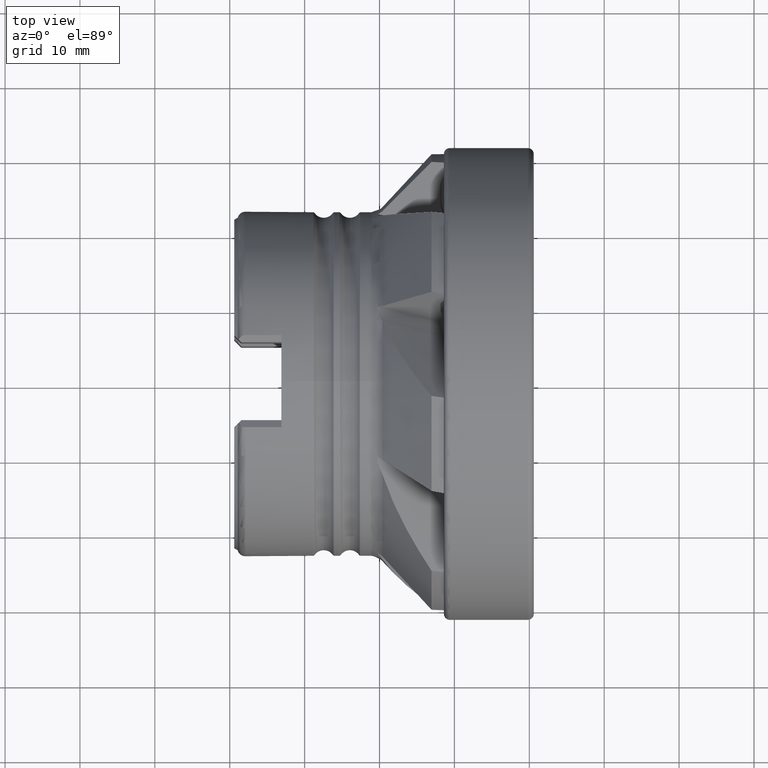
[diagram: clean part render]
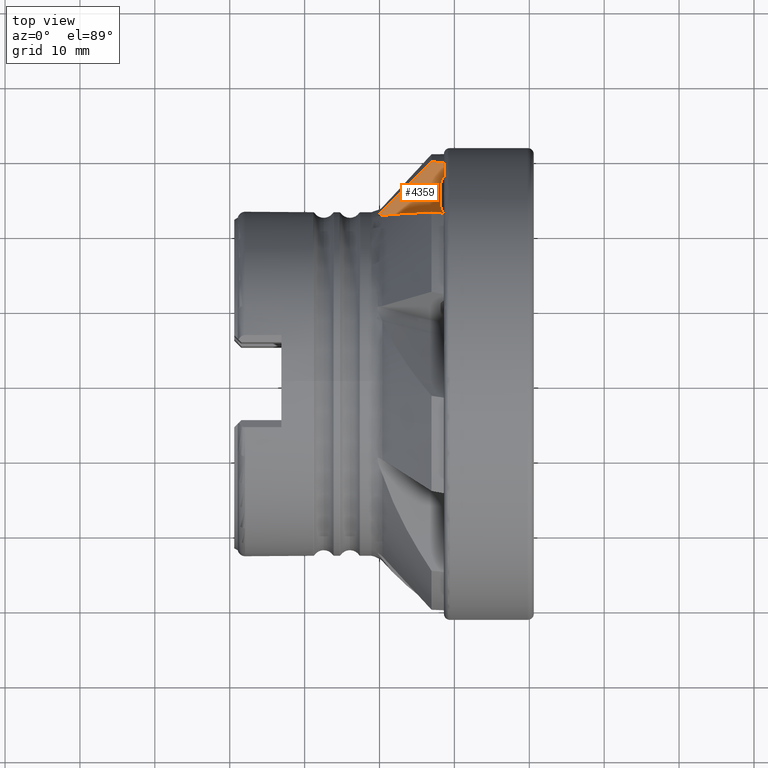
[diagram: same view with one face highlighted and labeled with its STEP entity id]
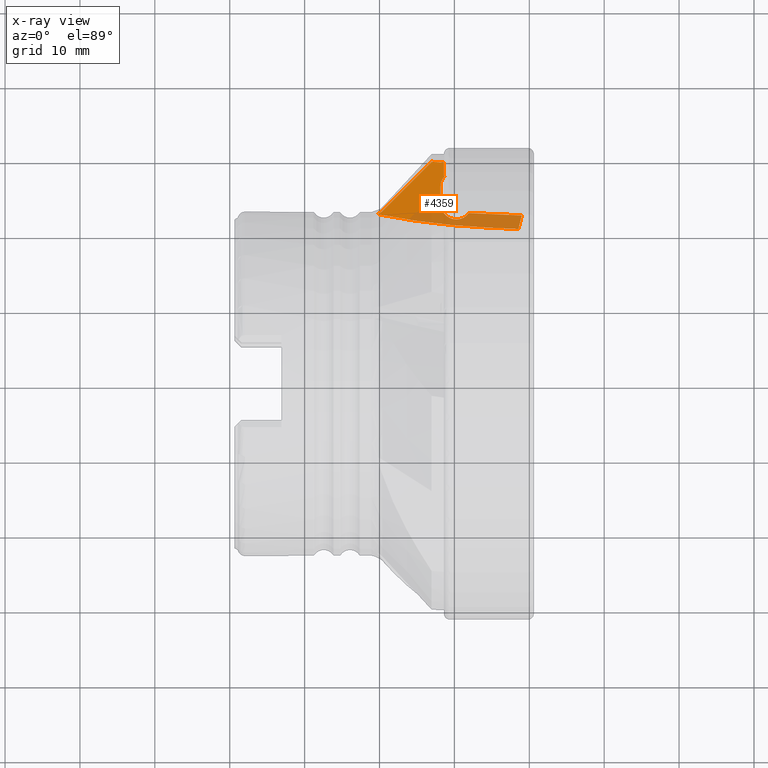
[diagram: x-ray of the same camera — body ghosted, the highlighted face saturated]
A machine part, top view. The second image highlights one B-rep face of the part: STEP entity #4359.
The next image is the same camera in x-ray: the body ghosted, the highlighted face saturated — about 38% of this face is hidden behind the body in this view.
In plain terms, the highlighted planar face has unit normal (0.2079, 0.2177, -0.9536).
Its self-contained STEP definition (entity closure, byte-faithful):
#717 = CARTESIAN_POINT ( 'NONE',  ( -13.05000000000000800, 29.51437124711978300, 8.412965582194477300 ) ) ;
#888 = CARTESIAN_POINT ( 'NONE',  ( -11.40000000000001100, 29.41612983181308400, 8.750280322247759200 ) ) ;
#984 = CARTESIAN_POINT ( 'NONE',  ( -1.399999999999999700, 20.75109378904626600, 8.952770887172615500 ) ) ;
#986 = CARTESIAN_POINT ( 'NONE',  ( -11.40000000000001300, 27.65860326959272400, 8.349136353353623400 ) ) ;
#987 = CARTESIAN_POINT ( 'NONE',  ( -1.399999999999998600, 20.53368536910167900, 8.903148834042792000 ) ) ;
#1009 = CARTESIAN_POINT ( 'NONE',  ( -11.87066722220399700, 23.97865013819527400, 7.406594856003336800 ) ) ;
#1011 = CARTESIAN_POINT ( 'NONE',  ( -19.62184398815338700, 22.98996803886779000, 5.491000971512423100 ) ) ;
#1012 = CARTESIAN_POINT ( 'NONE',  ( -8.101779273540891800, 22.67322418829703100, 7.930343592422763000 ) ) ;
#1015 = CARTESIAN_POINT ( 'NONE',  ( -11.87066722220399800, 26.22098433621347300, 7.918393004102839000 ) ) ;
#1026 = CARTESIAN_POINT ( 'NONE',  ( -1.007573603233080700, 22.33768042934038400, 9.400456855696591100 ) ) ;
#1027 = CARTESIAN_POINT ( 'NONE',  ( -11.31626254081455800, 27.59379822843382300, 8.352601705080122200 ) ) ;
#1035 = CARTESIAN_POINT ( 'NONE',  ( -5.298179414108309600, 20.71806256853527700, 8.095339542117798700 ) ) ;
#1042 = CARTESIAN_POINT ( 'NONE',  ( -20.25134450127465200, 22.57754396150406300, 5.259622371411837500 ) ) ;
#2112 = CIRCLE ( 'NONE', #10659, 99.46073420709503000 ) ;
#2113 = LINE ( 'NONE', #3311, #2114 ) ;
#2114 = VECTOR ( 'NONE', #3312, 1000.000000000000000 ) ;
#2115 = LINE ( 'NONE', #3318, #2117 ) ;
#2116 = LINE ( 'NONE', #3328, #2119 ) ;
#2117 = VECTOR ( 'NONE', #3317, 1000.000000000000100 ) ;
#2118 = CIRCLE ( 'NONE', #10660, 2.099999999999998800 ) ;
#2119 = VECTOR ( 'NONE', #3329, 1000.000000000000000 ) ;
#2120 = LINE ( 'NONE', #3334, #2121 ) ;
#2121 = VECTOR ( 'NONE', #3335, 999.9999999999998900 ) ;
#2122 = LINE ( 'NONE', #3331, #2124 ) ;
#2123 = CIRCLE ( 'NONE', #10661, 2.099999999999998800 ) ;
#2124 = VECTOR ( 'NONE', #3330, 999.9999999999998900 ) ;
#2712 = CARTESIAN_POINT ( 'NONE',  ( -11.40000000000001100, 29.41612983181308400, 8.750280322247759200 ) ) ;
#2722 = CARTESIAN_POINT ( 'NONE',  ( -11.94981101952587800, 29.44952037786332600, 8.638030131214263100 ) ) ;
#2726 = CARTESIAN_POINT ( 'NONE',  ( -12.49981702608669900, 29.48226787393104300, 8.525590656589532300 ) ) ;
#2727 = CARTESIAN_POINT ( 'NONE',  ( -13.05000000000000800, 29.51437124711978300, 8.412965582194477300 ) ) ;
#3226 = CARTESIAN_POINT ( 'NONE',  ( -13.05000000000000800, 29.51437124711978300, 8.412965582194477300 ) ) ;
#3230 = CARTESIAN_POINT ( 'NONE',  ( -11.40000000000001300, 27.65860326959272400, 8.349136353353623400 ) ) ;
#3231 = CARTESIAN_POINT ( 'NONE',  ( -11.37208619709051900, 27.63700331600980000, 8.350292151757601600 ) ) ;
#3308 = CARTESIAN_POINT ( 'NONE',  ( -15.24422269089575900, 27.34318702424662500, 7.439016267670200300 ) ) ;
#3309 = CARTESIAN_POINT ( 'NONE',  ( -11.34417370796317400, 27.61540163920717500, 8.351447270413398600 ) ) ;
#3310 = CARTESIAN_POINT ( 'NONE',  ( -11.31626254081455800, 27.59379822843382300, 8.352601705080122200 ) ) ;
#3311 = CARTESIAN_POINT ( 'NONE',  ( -11.40000000000001100, 32.48313802745663300, 9.450304928804477800 ) ) ;
#3312 = DIRECTION ( 'NONE',  ( 1.194219722515266000E-016, -0.9749279121818257300, -0.2225209339563050400 ) ) ;
#3313 = CARTESIAN_POINT ( 'NONE',  ( -19.71182841815441500, 22.90025039371689200, 5.450904842611252300 ) ) ;
#3314 = CARTESIAN_POINT ( 'NONE',  ( -19.62184398815338700, 22.98996803886779000, 5.491000971512423100 ) ) ;
#3315 = CARTESIAN_POINT ( 'NONE',  ( -17.43588998032106800, 25.16944115425723500, 6.465039409818675000 ) ) ;
#3316 = CARTESIAN_POINT ( 'NONE',  ( -19.62184398815338700, 22.98996803886779000, 5.491000971512423100 ) ) ;
#3317 = DIRECTION ( 'NONE',  ( 0.9781476007338054700, -0.04626470362120210100, 0.2026989106471518400 ) ) ;
#3318 = CARTESIAN_POINT ( 'NONE',  ( -5.298179414108309600, 20.71806256853527700, 8.095339542117798700 ) ) ;
#3319 = CARTESIAN_POINT ( 'NONE',  ( -19.80955648241484100, 22.82129733382977900, 5.411577370842754100 ) ) ;
#3320 = CARTESIAN_POINT ( 'NONE',  ( -20.01963783355524700, 22.68372203684706900, 5.334374172223825800 ) ) ;
#3321 = CARTESIAN_POINT ( 'NONE',  ( -20.13323932917926500, 22.62465917938361700, 5.296125738622354400 ) ) ;
#3322 = CARTESIAN_POINT ( 'NONE',  ( -20.25134450127465200, 22.57754396150406300, 5.259622371411837500 ) ) ;
#3323 = CARTESIAN_POINT ( 'NONE',  ( -1.007573603233080700, 22.33768042934038400, 9.400456855696591100 ) ) ;
#3324 = CARTESIAN_POINT ( 'NONE',  ( -1.138451710650601800, 21.80883833197573900, 9.251217680047258100 ) ) ;
#3325 = CARTESIAN_POINT ( 'NONE',  ( -5.298179414108318500, 117.6851085131299300, 30.22743500986040000 ) ) ;
#3326 = DIRECTION ( 'NONE',  ( 0.2079116908177598100, 0.2176583176624054000, -0.9536233981890711600 ) ) ;
#3327 = DIRECTION ( 'NONE',  ( 0.0000000000000000000, 0.9749279121818258400, 0.2225209339563049800 ) ) ;
#3328 = CARTESIAN_POINT ( 'NONE',  ( -1.399999999999998800, 20.56621950839895200, 8.910574539032294800 ) ) ;
#3329 = DIRECTION ( 'NONE',  ( 0.0000000000000000000, -0.9749279121818257300, -0.2225209339563050700 ) ) ;
#3330 = DIRECTION ( 'NONE',  ( 7.581208796100488200E-016, -0.9749279121818258400, -0.2225209339563049300 ) ) ;
#3331 = CARTESIAN_POINT ( 'NONE',  ( -11.87066722220400400, 32.50539977969437900, 9.352769819433969900 ) ) ;
#3332 = CARTESIAN_POINT ( 'NONE',  ( -1.269265565109694700, 21.27997757535361600, 9.101988254157269900 ) ) ;
#3333 = CARTESIAN_POINT ( 'NONE',  ( -1.399999999999999700, 20.75109378904626600, 8.952770887172615500 ) ) ;
#3334 = CARTESIAN_POINT ( 'NONE',  ( -5.298179414108313200, 22.54061872418120100, 8.511326091353561600 ) ) ;
#3335 = DIRECTION ( 'NONE',  ( 0.9781476007338055800, -0.04626470362120280200, 0.2026989106471517000 ) ) ;
#3337 = CARTESIAN_POINT ( 'NONE',  ( -9.816557260663007200, 23.88149426059074900, 7.832262568362354600 ) ) ;
#3338 = DIRECTION ( 'NONE',  ( -0.2079116908177597600, -0.2176583176624054300, 0.9536233981890711600 ) ) ;
#3339 = DIRECTION ( 'NONE',  ( 0.0000000000000000000, 0.9749279121818258400, 0.2225209339563049800 ) ) ;
#3342 = CARTESIAN_POINT ( 'NONE',  ( -9.816557260663007200, 26.12382845860894800, 8.344060716461857700 ) ) ;
#3343 = DIRECTION ( 'NONE',  ( -0.2079116908177597600, -0.2176583176624054300, 0.9536233981890711600 ) ) ;
#3344 = DIRECTION ( 'NONE',  ( 0.0000000000000000000, 0.9749279121818258400, 0.2225209339563049800 ) ) ;
#4082 =( BOUNDED_CURVE ( )  B_SPLINE_CURVE ( 3, ( #2712, #2722, #2726, #2727 ),
 .UNSPECIFIED., .F., .F. ) 
 B_SPLINE_CURVE_WITH_KNOTS ( ( 4, 4 ),
 ( 1.506065963502477600, 1.517513721457317300 ),
 .UNSPECIFIED. ) 
 CURVE ( )  GEOMETRIC_REPRESENTATION_ITEM ( )  RATIONAL_B_SPLINE_CURVE ( ( 1.000000000000000000, 0.9999890790996338600, 0.9999890790996338600, 1.000000000000000000 ) ) 
 REPRESENTATION_ITEM ( '' )  );
#4359 = ADVANCED_FACE ( 'NONE', ( #8617 ), #9001, .F. ) ;
#4830 = B_SPLINE_CURVE_WITH_KNOTS ( 'NONE', 3,
 ( #3230, #3231, #3309, #3310 ),
 .UNSPECIFIED., .F., .F.,
 ( 4, 4 ),
 ( 2.530202045593439000E-007, 0.0001061943739503402600 ),
 .UNSPECIFIED. ) ;
#4831 = B_SPLINE_CURVE_WITH_KNOTS ( 'NONE', 3,
 ( #3226, #3308, #3315, #3316 ),
 .UNSPECIFIED., .F., .F.,
 ( 4, 4 ),
 ( 2.950339571092213700E-007, 0.009710848458688107700 ),
 .UNSPECIFIED. ) ;
#4832 = B_SPLINE_CURVE_WITH_KNOTS ( 'NONE', 3,
 ( #3314, #3313, #3319, #3320, #3321, #3322 ),
 .UNSPECIFIED., .F., .F.,
 ( 4, 2, 4 ),
 ( 2.918899962626012700E-007, 0.0003942498414288167000, 0.0007882077928613708200 ),
 .UNSPECIFIED. ) ;
#4833 = B_SPLINE_CURVE_WITH_KNOTS ( 'NONE', 3,
 ( #3323, #3324, #3332, #3333 ),
 .UNSPECIFIED., .F., .F.,
 ( 4, 4 ),
 ( 0.0008965211846415616500, 0.002591123898552382500 ),
 .UNSPECIFIED. ) ;
#6004 = ORIENTED_EDGE ( 'NONE', *, *, #7817, .F. ) ;
#6005 = ORIENTED_EDGE ( 'NONE', *, *, #7818, .F. ) ;
#6006 = ORIENTED_EDGE ( 'NONE', *, *, #7671, .T. ) ;
#6007 = ORIENTED_EDGE ( 'NONE', *, *, #7819, .T. ) ;
#6008 = ORIENTED_EDGE ( 'NONE', *, *, #7820, .T. ) ;
#6009 = ORIENTED_EDGE ( 'NONE', *, *, #7821, .F. ) ;
#6010 = ORIENTED_EDGE ( 'NONE', *, *, #7822, .T. ) ;
#6011 = ORIENTED_EDGE ( 'NONE', *, *, #7823, .F. ) ;
#6012 = ORIENTED_EDGE ( 'NONE', *, *, #7824, .F. ) ;
#6013 = ORIENTED_EDGE ( 'NONE', *, *, #7825, .F. ) ;
#6014 = ORIENTED_EDGE ( 'NONE', *, *, #7826, .F. ) ;
#6015 = ORIENTED_EDGE ( 'NONE', *, *, #7827, .F. ) ;
#6016 = ORIENTED_EDGE ( 'NONE', *, *, #7828, .F. ) ;
#6729 = VERTEX_POINT ( 'NONE', #717 ) ;
#6896 = VERTEX_POINT ( 'NONE', #888 ) ;
#7090 = VERTEX_POINT ( 'NONE', #984 ) ;
#7092 = VERTEX_POINT ( 'NONE', #986 ) ;
#7093 = VERTEX_POINT ( 'NONE', #987 ) ;
#7115 = VERTEX_POINT ( 'NONE', #1009 ) ;
#7117 = VERTEX_POINT ( 'NONE', #1011 ) ;
#7118 = VERTEX_POINT ( 'NONE', #1012 ) ;
#7121 = VERTEX_POINT ( 'NONE', #1015 ) ;
#7132 = VERTEX_POINT ( 'NONE', #1026 ) ;
#7133 = VERTEX_POINT ( 'NONE', #1027 ) ;
#7141 = VERTEX_POINT ( 'NONE', #1035 ) ;
#7148 = VERTEX_POINT ( 'NONE', #1042 ) ;
#7671 = EDGE_CURVE ( 'NONE', #6896, #6729, #4082, .T. ) ;
#7817 = EDGE_CURVE ( 'NONE', #7092, #7133, #4830, .T. ) ;
#7818 = EDGE_CURVE ( 'NONE', #6896, #7092, #2113, .T. ) ;
#7819 = EDGE_CURVE ( 'NONE', #6729, #7117, #4831, .T. ) ;
#7820 = EDGE_CURVE ( 'NONE', #7117, #7148, #4832, .T. ) ;
#7821 = EDGE_CURVE ( 'NONE', #7141, #7148, #2112, .T. ) ;
#7822 = EDGE_CURVE ( 'NONE', #7141, #7093, #2115, .T. ) ;
#7823 = EDGE_CURVE ( 'NONE', #7090, #7093, #2116, .T. ) ;
#7824 = EDGE_CURVE ( 'NONE', #7132, #7090, #4833, .T. ) ;
#7825 = EDGE_CURVE ( 'NONE', #7118, #7132, #2120, .T. ) ;
#7826 = EDGE_CURVE ( 'NONE', #7115, #7118, #2118, .T. ) ;
#7827 = EDGE_CURVE ( 'NONE', #7121, #7115, #2122, .T. ) ;
#7828 = EDGE_CURVE ( 'NONE', #7133, #7121, #2123, .T. ) ;
#8119 = AXIS2_PLACEMENT_3D ( 'NONE', #8999, #9003, #9004 ) ;
#8384 = EDGE_LOOP ( 'NONE', ( #6004, #6005, #6006, #6007, #6008, #6009, #6010, #6011, #6012, #6013, #6014, #6015, #6016 ) ) ;
#8617 = FACE_OUTER_BOUND ( 'NONE', #8384, .T. ) ;
#8999 = CARTESIAN_POINT ( 'NONE',  ( -5.298179414108309600, 32.19453238067669100, 10.71476888577451300 ) ) ;
#9001 = PLANE ( 'NONE',  #8119 ) ;
#9003 = DIRECTION ( 'NONE',  ( 0.2079116908177597600, 0.2176583176624054000, -0.9536233981890711600 ) ) ;
#9004 = DIRECTION ( 'NONE',  ( 0.0000000000000000000, 0.9749279121818257300, 0.2225209339563050700 ) ) ;
#10659 = AXIS2_PLACEMENT_3D ( 'NONE', #3325, #3326, #3327 ) ;
#10660 = AXIS2_PLACEMENT_3D ( 'NONE', #3337, #3338, #3339 ) ;
#10661 = AXIS2_PLACEMENT_3D ( 'NONE', #3342, #3343, #3344 ) ;